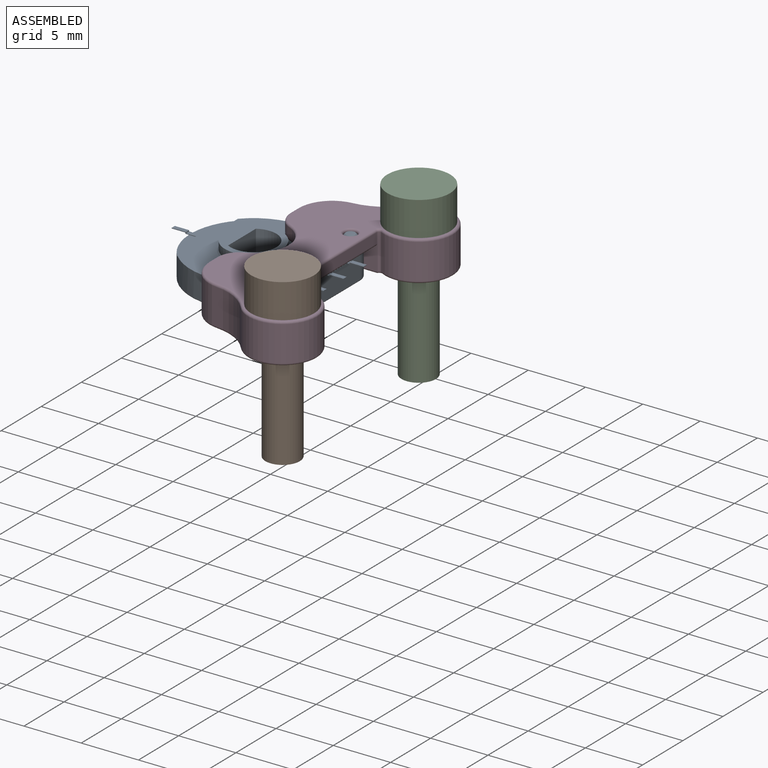
[diagram: assembled view]
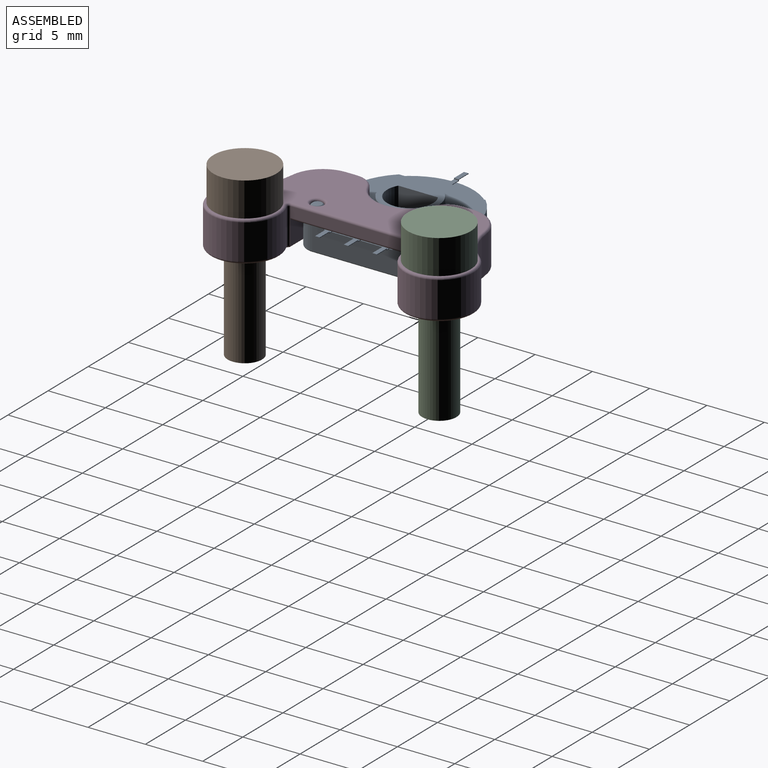
[diagram: assembled view, second angle]
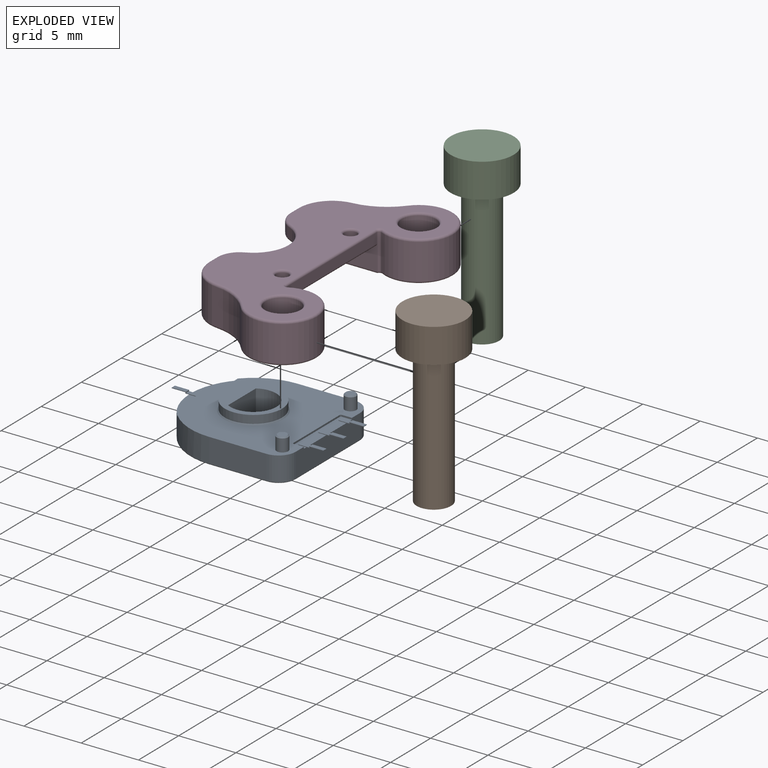
[diagram: exploded view]
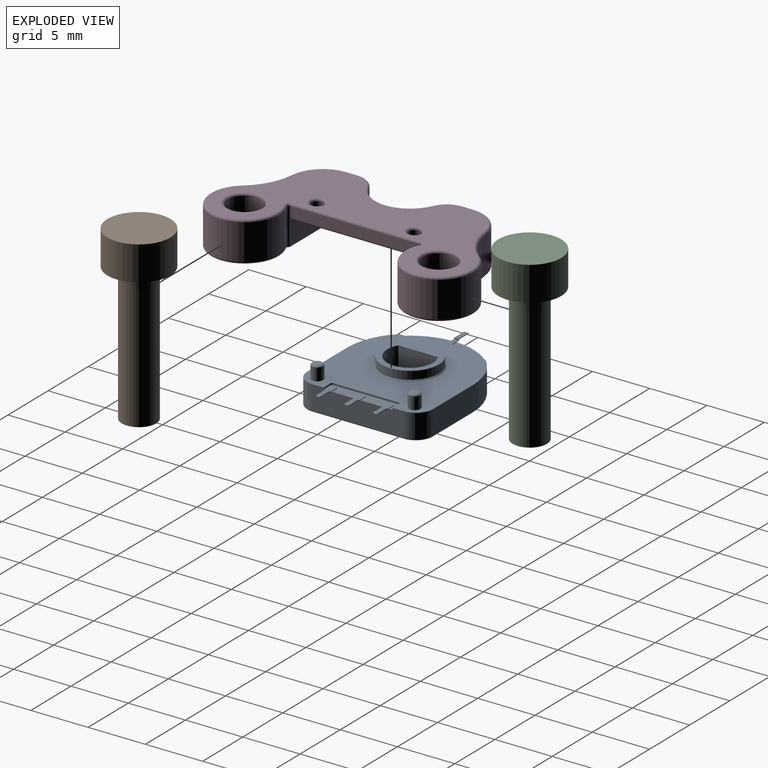
[diagram: exploded view, second angle]
ASSEMBLY  parts=4 mates=3
PART A: 143 faces, bbox 11.9x15x3.4 mm
  f0: plane 7.55x1.5mm, normal (0,0,-1), area 4.7mm2, adj f2,f28,f29,f30,f31,f32,f33,f34
  f1: plane 11.8x10.8mm, normal (0,0,1), area 91.4mm2, adj f9,f11,f12,f13,f14,f15,f16,f41
  f2: cylinder r=5.5mm len=11mm, axis (0,0,-1), area 35mm2, adj f0,f3,f4,f8,f15,f28,f34,f101
  f3: plane 11.25x11mm, normal (0,0,-1), area 84.3mm2, adj f2,f4,f5,f6,f7,f8,f21,f22
  f4: plane 5x2.1mm, normal (-1,0,0), area 10.5mm2, adj f2,f3,f5,f13
  f5: cylinder r=1.5mm len=2.1mm, axis (0,0,-1), area 4.9mm2, adj f3,f4,f6,f11
  f6: plane 8x2.1mm, normal (0,-1,0), area 15.9mm2, adj f3,f5,f7,f12,f35,f39,f40,f87
  f7: cylinder r=1.5mm len=2.1mm, axis (0,0,-1), area 4.9mm2, adj f3,f6,f8,f14
  f8: plane 5x2.1mm, normal (1,0,0), area 10.5mm2, adj f2,f3,f7,f16
  f9: cylinder r=2.25mm len=4.5mm, axis (0,0,1), area 1.4mm2, adj f1,f10
  f10: plane 4.5x4.5mm, normal (0,0,1), area 5.8mm2, adj f9,f19,f20
  f11: torus R=1.4mm, axis (0,0,1), area 0.4mm2, adj f1,f5,f12,f13
  f12: cylinder r=0.1mm len=8mm, axis (-1,0,0), area 1.3mm2, adj f1,f6,f11,f14
  f13: cylinder r=0.1mm len=5mm, axis (0,1,0), area 0.8mm2, adj f1,f4,f11,f15
  f14: torus R=1.4mm, axis (0,0,1), area 0.4mm2, adj f1,f7,f12,f16
  f15: torus R=5.4mm, axis (0,0,1), area 2.7mm2, adj f1,f2,f13,f16
  f16: cylinder r=0.1mm len=5mm, axis (0,-1,0), area 0.8mm2, adj f1,f8,f14,f15
  f17: cylinder r=2.5mm len=5mm, axis (0,0,1), area 11mm2, adj f18,f21
  f18: plane 5x5mm, normal (0,0,-1), area 9.5mm2, adj f17,f19,f20
  f19: cylinder r=2mm len=4mm, axis (0,0,1), area 24.3mm2, adj f10,f18,f20
  f20: plane 3.46x2.9mm, normal (0,-1,0), area 10mm2, adj f10,f18,f19
  f21: cone r=2.5mm half-angle=45deg, axis (0,0,1), area 2.3mm2, adj f3,f17
  f22: cylinder r=0.5mm len=1.1mm, axis (0,0,1), area 3.5mm2, adj f3,f27
  f23: plane 0.8x0.8mm, normal (0,0,-1), area 0.5mm2, adj f27
  f24: cylinder r=0.5mm len=1.1mm, axis (0,0,1), area 3.5mm2, adj f3,f26
  f25: plane 0.8x0.8mm, normal (0,0,-1), area 0.5mm2, adj f26
  f26: cone r=0.5mm half-angle=45deg, axis (0,0,1), area 0.4mm2, adj f24,f25
  f27: cone r=0.4mm half-angle=45deg, axis (0,0,1), area 0.4mm2, adj f22,f23
  f28: plane 1.09x0.15mm, normal (0,1,0), area 0.2mm2, adj f0,f2,f3,f29
  f29: cylinder r=0.1mm len=0.15mm, axis (0,0,-1), area 0mm2, adj f0,f3,f28,f30
  f30: cylinder r=4.8mm len=1.94mm, axis (0,0,-1), area 0.3mm2, adj f0,f3,f29,f31
  f31: plane 1.38x0.15mm, normal (0,1,0), area 0.2mm2, adj f0,f3,f30,f32
  f32: cylinder r=4.8mm len=1.94mm, axis (0,0,-1), area 0.3mm2, adj f0,f3,f31,f33
  f33: cylinder r=0.1mm len=0.15mm, axis (0,0,-1), area 0mm2, adj f0,f3,f32,f34
  f34: plane 1.09x0.15mm, normal (0,1,0), area 0.2mm2, adj f0,f2,f3,f33
  f35: plane 0.9x0.15mm, normal (1,0,0), area 0.1mm2, adj f3,f6,f36,f40
  f36: cylinder r=0.1mm len=0.15mm, axis (0,0,-1), area 0mm2, adj f3,f35,f37,f40
  f37: plane 5.8x0.15mm, normal (0,-1,0), area 0.9mm2, adj f3,f36,f38,f40
  f38: cylinder r=0.1mm len=0.15mm, axis (0,0,-1), area 0mm2, adj f3,f37,f39,f40
  f39: plane 0.9x0.15mm, normal (-1,0,0), area 0.1mm2, adj f3,f6,f38,f40
  f40: plane 6x1mm, normal (0,0,-1), area 5.2mm2, adj f6,f35,f36,f37,f38,f39,f88,f99
  f41: cylinder r=0.1mm len=0.2mm, axis (0,0,1), area 0mm2, adj f1,f42,f48,f49
  f42: plane 1.3x0.2mm, normal (0,1,0), area 0.3mm2, adj f1,f41,f43,f49
  f43: cylinder r=0.1mm len=0.2mm, axis (0,0,1), area 0mm2, adj f1,f42,f44,f49
  f44: plane 0.4x0.2mm, normal (-1,0,0), area 0.1mm2, adj f1,f43,f45,f49
  f45: cylinder r=0.1mm len=0.2mm, axis (0,0,1), area 0mm2, adj f1,f44,f46,f49
  f46: plane 1.3x0.2mm, normal (0,-1,0), area 0.3mm2, adj f1,f45,f47,f49
  f47: cylinder r=0.1mm len=0.2mm, axis (0,0,1), area 0mm2, adj f1,f46,f48,f49
  f48: plane 0.4x0.2mm, normal (1,0,0), area 0.1mm2, adj f1,f41,f47,f49
  f49: plane 1.5x0.6mm, normal (0,0,1), area 0.9mm2, adj f41,f42,f43,f44,f45,f46,f47,f48
  f50: cylinder r=0.3mm len=0.6mm, axis (0,0,1), area 0.2mm2, adj f1,f51,f53,f54
  f51: cylinder r=4.7mm len=1.53mm, axis (0,0,1), area 0.3mm2, adj f1,f50,f52,f54
  f52: cylinder r=0.3mm len=0.56mm, axis (0,0,1), area 0.2mm2, adj f1,f51,f53,f54
  f53: cylinder r=5.3mm len=1.73mm, axis (0,0,1), area 0.4mm2, adj f1,f50,f52,f54
  f54: plane 2.23x1.19mm, normal (0,0,1), area 1.3mm2, adj f50,f51,f52,f53
  f55: cylinder r=0.1mm len=0.2mm, axis (0,0,1), area 0mm2, adj f1,f56,f62,f63
  f56: plane 0.4x0.2mm, normal (0,1,0), area 0.1mm2, adj f1,f55,f57,f63
  f57: cylinder r=0.1mm len=0.2mm, axis (0,0,1), area 0mm2, adj f1,f56,f58,f63
  f58: plane 1.8x0.2mm, normal (-1,0,0), area 0.4mm2, adj f1,f57,f59,f63
  f59: cylinder r=0.1mm len=0.2mm, axis (0,0,1), area 0mm2, adj f1,f58,f60,f63
  f60: plane 0.4x0.2mm, normal (0,-1,0), area 0.1mm2, adj f1,f59,f61,f63
  f61: cylinder r=0.1mm len=0.2mm, axis (0,0,1), area 0mm2, adj f1,f60,f62,f63
  f62: plane 1.8x0.2mm, normal (1,0,0), area 0.4mm2, adj f1,f55,f61,f63
  f63: plane 2x0.6mm, normal (0,0,1), area 1.2mm2, adj f55,f56,f57,f58,f59,f60,f61,f62
  f64: cylinder r=0.1mm len=0.2mm, axis (0,0,1), area 0mm2, adj f1,f65,f71,f72
  f65: plane 1.3x0.2mm, normal (0,-1,0), area 0.3mm2, adj f1,f64,f66,f72
  f66: cylinder r=0.1mm len=0.2mm, axis (0,0,1), area 0mm2, adj f1,f65,f67,f72
  f67: plane 0.4x0.2mm, normal (1,0,0), area 0.1mm2, adj f1,f66,f68,f72
  f68: cylinder r=0.1mm len=0.2mm, axis (0,0,1), area 0mm2, adj f1,f67,f69,f72
  f69: plane 1.3x0.2mm, normal (0,1,0), area 0.3mm2, adj f1,f68,f70,f72
  f70: cylinder r=0.1mm len=0.2mm, axis (0,0,1), area 0mm2, adj f1,f69,f71,f72
  f71: plane 0.4x0.2mm, normal (-1,0,0), area 0.1mm2, adj f1,f64,f70,f72
  f72: plane 1.5x0.6mm, normal (0,0,1), area 0.9mm2, adj f64,f65,f66,f67,f68,f69,f70,f71
  f73: cylinder r=0.1mm len=0.2mm, axis (0,0,1), area 0mm2, adj f1,f74,f80,f81
  f74: plane 1.8x0.2mm, normal (1,0,0), area 0.4mm2, adj f1,f73,f75,f81
  f75: cylinder r=0.1mm len=0.2mm, axis (0,0,1), area 0mm2, adj f1,f74,f76,f81
  f76: plane 0.4x0.2mm, normal (0,1,0), area 0.1mm2, adj f1,f75,f77,f81
  f77: cylinder r=0.1mm len=0.2mm, axis (0,0,1), area 0mm2, adj f1,f76,f78,f81
  f78: plane 1.8x0.2mm, normal (-1,0,0), area 0.4mm2, adj f1,f77,f79,f81
  f79: cylinder r=0.1mm len=0.2mm, axis (0,0,1), area 0mm2, adj f1,f78,f80,f81
  f80: plane 0.4x0.2mm, normal (0,-1,0), area 0.1mm2, adj f1,f73,f79,f81
  f81: plane 2x0.6mm, normal (0,0,1), area 1.2mm2, adj f73,f74,f75,f76,f77,f78,f79,f80
  f82: cylinder r=0.3mm len=0.6mm, axis (0,0,1), area 0.2mm2, adj f1,f83,f85,f86
  f83: cylinder r=5.3mm len=1.73mm, axis (0,0,1), area 0.4mm2, adj f1,f82,f84,f86
  f84: cylinder r=0.3mm len=0.56mm, axis (0,0,1), area 0.2mm2, adj f1,f83,f85,f86
  f85: cylinder r=4.7mm len=1.53mm, axis (0,0,1), area 0.3mm2, adj f1,f82,f84,f86
  f86: plane 2.23x1.19mm, normal (0,0,1), area 1.3mm2, adj f82,f83,f84,f85
  f87: plane 0.4x0.28mm, normal (0,0,1), area 0.1mm2, adj f6,f89,f99,f100
  f88: plane 0.4x0.05mm, normal (0,1,0), area 0mm2, adj f40,f98,f99,f100
  f89: cylinder r=0.02mm len=0.4mm, axis (-1,0,0), area 0mm2, adj f87,f90,f99,f100
  f90: plane 0.4x0.06mm, normal (0,-1,0), area 0mm2, adj f89,f91,f99,f100
  f91: cylinder r=0.02mm len=0.4mm, axis (-1,0,0), area 0mm2, adj f90,f92,f99,f100
  f92: plane 1.18x0.4mm, normal (0,0,1), area 0.5mm2, adj f91,f93,f99,f100
  f93: plane 0.4x0.05mm, normal (0,-1,0), area 0mm2, adj f92,f94,f99,f100
  f94: plane 1.23x0.4mm, normal (0,0,-1), area 0.5mm2, adj f93,f95,f99,f100
  f95: cylinder r=0.02mm len=0.4mm, axis (-1,0,0), area 0mm2, adj f94,f96,f99,f100
  f96: plane 0.4x0.06mm, normal (0,1,0), area 0mm2, adj f95,f97,f99,f100
  f97: cylinder r=0.02mm len=0.4mm, axis (-1,0,0), area 0mm2, adj f96,f98,f99,f100
  f98: plane 0.93x0.4mm, normal (0,0,-1), area 0.4mm2, adj f88,f97,f99,f100
  f99: plane 2.2x0.15mm, normal (1,0,0), area 0.1mm2, adj f40,f87,f88,f89,f90,f91,f92,f93
  f100: plane 2.2x0.15mm, normal (-1,0,0), area 0.1mm2, adj f40,f87,f88,f89,f90,f91,f92,f93
  f101: plane 0.4x0.28mm, normal (0,0,1), area 0.1mm2, adj f2,f107,f113,f114
  f102: plane 1.23x0.4mm, normal (0,0,-1), area 0.5mm2, adj f103,f112,f113,f114
  f103: plane 0.4x0.05mm, normal (0,1,0), area 0mm2, adj f102,f104,f113,f114
  f104: plane 1.18x0.4mm, normal (0,0,1), area 0.5mm2, adj f103,f105,f113,f114
  f105: cylinder r=0.02mm len=0.4mm, axis (-1,0,0), area 0mm2, adj f104,f106,f113,f114
  f106: plane 0.4x0.06mm, normal (0,1,0), area 0mm2, adj f105,f107,f113,f114
  f107: cylinder r=0.02mm len=0.4mm, axis (-1,0,0), area 0mm2, adj f101,f106,f113,f114
  f108: plane 0.4x0.05mm, normal (0,-1,0), area 0mm2, adj f0,f109,f113,f114
  f109: plane 0.93x0.4mm, normal (0,0,-1), area 0.4mm2, adj f108,f110,f113,f114
  f110: cylinder r=0.02mm len=0.4mm, axis (-1,0,0), area 0mm2, adj f109,f111,f113,f114
  f111: plane 0.4x0.06mm, normal (0,-1,0), area 0mm2, adj f110,f112,f113,f114
  f112: cylinder r=0.02mm len=0.4mm, axis (-1,0,0), area 0mm2, adj f102,f111,f113,f114
  f113: plane 2.2x0.15mm, normal (1,0,0), area 0.1mm2, adj f0,f101,f102,f103,f104,f105,f106,f107
  f114: plane 2.2x0.15mm, normal (-1,0,0), area 0.1mm2, adj f0,f101,f102,f103,f104,f105,f106,f107
  f115: plane 0.4x0.28mm, normal (0,0,1), area 0.1mm2, adj f6,f117,f127,f128
  f116: plane 0.4x0.05mm, normal (0,1,0), area 0mm2, adj f40,f126,f127,f128
  f117: cylinder r=0.02mm len=0.4mm, axis (-1,0,0), area 0mm2, adj f115,f118,f127,f128
  f118: plane 0.4x0.06mm, normal (0,-1,0), area 0mm2, adj f117,f119,f127,f128
  f119: cylinder r=0.02mm len=0.4mm, axis (-1,0,0), area 0mm2, adj f118,f120,f127,f128
  f120: plane 1.18x0.4mm, normal (0,0,1), area 0.5mm2, adj f119,f121,f127,f128
  f121: plane 0.4x0.05mm, normal (0,-1,0), area 0mm2, adj f120,f122,f127,f128
  f122: plane 1.23x0.4mm, normal (0,0,-1), area 0.5mm2, adj f121,f123,f127,f128
  f123: cylinder r=0.02mm len=0.4mm, axis (-1,0,0), area 0mm2, adj f122,f124,f127,f128
  f124: plane 0.4x0.06mm, normal (0,1,0), area 0mm2, adj f123,f125,f127,f128
  f125: cylinder r=0.02mm len=0.4mm, axis (-1,0,0), area 0mm2, adj f124,f126,f127,f128
  f126: plane 0.93x0.4mm, normal (0,0,-1), area 0.4mm2, adj f116,f125,f127,f128
  f127: plane 2.2x0.15mm, normal (1,0,0), area 0.1mm2, adj f40,f115,f116,f117,f118,f119,f120,f121
  f128: plane 2.2x0.15mm, normal (-1,0,0), area 0.1mm2, adj f40,f115,f116,f117,f118,f119,f120,f121
  f129: plane 0.4x0.28mm, normal (0,0,1), area 0.1mm2, adj f6,f131,f141,f142
  f130: plane 0.4x0.05mm, normal (0,1,0), area 0mm2, adj f40,f140,f141,f142
  f131: cylinder r=0.02mm len=0.4mm, axis (-1,0,0), area 0mm2, adj f129,f132,f141,f142
  f132: plane 0.4x0.06mm, normal (0,-1,0), area 0mm2, adj f131,f133,f141,f142
  f133: cylinder r=0.02mm len=0.4mm, axis (-1,0,0), area 0mm2, adj f132,f134,f141,f142
  f134: plane 1.18x0.4mm, normal (0,0,1), area 0.5mm2, adj f133,f135,f141,f142
  f135: plane 0.4x0.05mm, normal (0,-1,0), area 0mm2, adj f134,f136,f141,f142
  f136: plane 1.23x0.4mm, normal (0,0,-1), area 0.5mm2, adj f135,f137,f141,f142
  f137: cylinder r=0.02mm len=0.4mm, axis (-1,0,0), area 0mm2, adj f136,f138,f141,f142
  f138: plane 0.4x0.06mm, normal (0,1,0), area 0mm2, adj f137,f139,f141,f142
  f139: cylinder r=0.02mm len=0.4mm, axis (-1,0,0), area 0mm2, adj f138,f140,f141,f142
  f140: plane 0.93x0.4mm, normal (0,0,-1), area 0.4mm2, adj f130,f139,f141,f142
  f141: plane 2.2x0.15mm, normal (1,0,0), area 0.1mm2, adj f40,f129,f130,f131,f132,f133,f134,f135
  f142: plane 2.2x0.15mm, normal (-1,0,0), area 0.1mm2, adj f40,f129,f130,f131,f132,f133,f134,f135
PART B: 5 faces, bbox 5.5x5.5x15 mm
  f0: cylinder r=2.75mm len=5.5mm, axis (0,0,-1), area 51.8mm2, adj f1,f2
  f1: plane 5.5x5.5mm, normal (0,0,1), area 16.7mm2, adj f0,f3
  f2: plane 5.5x5.5mm, normal (0,0,-1), area 23.8mm2, adj f0
  f3: cylinder r=1.5mm len=12mm, axis (0,0,-1), area 113.1mm2, adj f1,f4
  f4: plane 3x3mm, normal (0,0,1), area 7.1mm2, adj f3
PART C: same geometry as B
PART D: 70 faces, bbox 12x23.5x3.5 mm
  f0: plane 11.06x5.6mm, normal (0,0,-1), area 29.8mm2, adj f32,f34,f35,f37,f38,f63
  f1: plane 22.57x11.09mm, normal (0,0,1), area 116.1mm2, adj f49,f50,f51,f52,f53,f54,f55,f56
  f2: plane 0.94x0.9mm, normal (-1,0,0), area 0.8mm2, adj f21,f22,f43,f57
  f3: plane 11.4x6.41mm, normal (0,0,-1), area 54mm2, adj f4,f5,f30,f31,f33,f36,f39,f41
  f4: plane 6.59x2.21mm, normal (0,-1,0), area 13.2mm2, adj f3,f16,f27,f30,f47
  f5: plane 6.59x2.21mm, normal (0,1,0), area 13.2mm2, adj f3,f17,f38,f42,f45
  f6: plane 11.06x5.6mm, normal (0,0,-1), area 29.8mm2, adj f24,f25,f26,f27,f28,f65
  f7: cylinder r=3mm len=5.5mm, axis (0,0,1), area 6.3mm2, adj f22,f23,f39,f53
  f8: cylinder r=0.55mm len=1.1mm, axis (0,0,1), area 3.1mm2, adj f67,f69
  f9: cylinder r=0.55mm len=1.1mm, axis (0,0,1), area 3.1mm2, adj f48,f68
  f10: plane 0.94x0.9mm, normal (-1,0,0), area 0.8mm2, adj f20,f23,f33,f49
  f11: cylinder r=1.5mm len=3.1mm, axis (0,0,1), area 29.2mm2, adj f63,f64
  f12: cylinder r=1.5mm len=3.1mm, axis (0,0,1), area 29.2mm2, adj f65,f66
  f13: cylinder r=3mm len=6mm, axis (0,0,1), area 42mm2, adj f16,f18,f24,f54
  f14: cylinder r=3mm len=6mm, axis (0,0,1), area 42mm2, adj f17,f19,f32,f62
  f15: plane 11.3x0.9mm, normal (1,0,0), area 10.2mm2, adj f16,f17,f46,f58
  f16: cylinder r=0.2mm len=3.1mm, axis (0,0,1), area 1.2mm2, adj f4,f13,f15,f25,f47,f56
  f17: cylinder r=0.2mm len=3.1mm, axis (0,0,1), area 1.2mm2, adj f5,f14,f15,f35,f45,f60
  f18: cylinder r=5mm len=3.43mm, axis (0,0,1), area 12.4mm2, adj f13,f20,f26,f52
  f19: cylinder r=5mm len=3.43mm, axis (0,0,1), area 12.4mm2, adj f14,f21,f34,f61
  f20: cylinder r=3mm len=3.1mm, axis (0,0,1), area 12.8mm2, adj f10,f18,f28,f30,f31,f50
  f21: cylinder r=3mm len=3.1mm, axis (0,0,1), area 12.8mm2, adj f2,f19,f37,f42,f44,f59
  f22: cylinder r=2mm len=1.83mm, axis (0,0,1), area 2.1mm2, adj f2,f7,f41,f55
  f23: cylinder r=2mm len=1.83mm, axis (0,0,1), area 2.1mm2, adj f7,f10,f36,f51
  f24: torus R=2.8mm, axis (0,0,1), area 4.2mm2, adj f6,f13,f25,f26
  f25: torus R=0.4mm, axis (0,0,1), area 0.1mm2, adj f6,f16,f24,f27
  f26: torus R=5.2mm, axis (0,0,1), area 1.3mm2, adj f6,f18,f24,f28
  f27: cylinder r=0.2mm len=6.59mm, axis (1,0,0), area 2.1mm2, adj f4,f6,f25,f29
  f28: torus R=2.8mm, axis (0,0,1), area 1.2mm2, adj f6,f20,f26,f29
  f29: sphere r=0.2mm, area 0.1mm2, adj f27,f28,f30
  f30: cylinder r=0.2mm len=2.2mm, axis (0,0,1), area 0.7mm2, adj f3,f4,f20,f29,f31
  f31: torus R=2.8mm, axis (0,0,-1), area 0.1mm2, adj f3,f20,f30,f33
  f32: torus R=2.8mm, axis (0,0,1), area 4.2mm2, adj f0,f14,f34,f35
  f33: cylinder r=0.2mm len=0.94mm, axis (0,-1,0), area 0.3mm2, adj f3,f10,f31,f36
  f34: torus R=5.2mm, axis (0,0,1), area 1.3mm2, adj f0,f19,f32,f37
  f35: torus R=0.4mm, axis (0,0,1), area 0.1mm2, adj f0,f17,f32,f38
  f36: torus R=1.8mm, axis (0,0,-1), area 0.7mm2, adj f3,f23,f33,f39
  f37: torus R=2.8mm, axis (0,0,1), area 1.2mm2, adj f0,f21,f34,f40
  f38: cylinder r=0.2mm len=6.59mm, axis (-1,0,0), area 2.1mm2, adj f0,f5,f35,f40
  f39: torus R=3.2mm, axis (0,0,-1), area 2.2mm2, adj f3,f7,f36,f41
  f40: sphere r=0.2mm, area 0.1mm2, adj f37,f38,f42
  f41: torus R=1.8mm, axis (0,0,-1), area 0.7mm2, adj f3,f22,f39,f43
  f42: cylinder r=0.2mm len=2.2mm, axis (0,0,1), area 0.7mm2, adj f3,f5,f21,f40,f44
  f43: cylinder r=0.2mm len=0.94mm, axis (0,-1,0), area 0.3mm2, adj f2,f3,f41,f44
  f44: torus R=2.8mm, axis (0,0,-1), area 0.1mm2, adj f3,f21,f42,f43
  f45: torus R=0.4mm, axis (0,0,-1), area 0mm2, adj f3,f5,f17,f46
  f46: cylinder r=0.2mm len=11.3mm, axis (0,-1,0), area 3.5mm2, adj f3,f15,f45,f47
  f47: torus R=0.4mm, axis (0,0,-1), area 0mm2, adj f3,f4,f16,f46
  f48: torus R=0.75mm, axis (0,0,-1), area 1.2mm2, adj f3,f9
  f49: cylinder r=0.2mm len=0.94mm, axis (0,1,0), area 0.3mm2, adj f1,f10,f50,f51
  f50: torus R=2.8mm, axis (0,0,1), area 1.4mm2, adj f1,f20,f49,f52
  f51: torus R=1.8mm, axis (0,0,1), area 0.7mm2, adj f1,f23,f49,f53
  f52: torus R=5.2mm, axis (0,0,1), area 1.3mm2, adj f1,f18,f50,f54
  f53: torus R=3.2mm, axis (0,0,1), area 2.2mm2, adj f1,f7,f51,f55
  f54: torus R=2.8mm, axis (0,0,1), area 4.2mm2, adj f1,f13,f52,f56
  f55: torus R=1.8mm, axis (0,0,1), area 0.7mm2, adj f1,f22,f53,f57
  f56: torus R=0.4mm, axis (0,0,1), area 0.2mm2, adj f1,f16,f54,f58
  f57: cylinder r=0.2mm len=0.94mm, axis (0,1,0), area 0.3mm2, adj f1,f2,f55,f59
  f58: cylinder r=0.2mm len=11.3mm, axis (0,1,0), area 3.5mm2, adj f1,f15,f56,f60
  f59: torus R=2.8mm, axis (0,0,1), area 1.4mm2, adj f1,f21,f57,f61
  f60: torus R=0.4mm, axis (0,0,1), area 0.2mm2, adj f1,f17,f58,f62
  f61: torus R=5.2mm, axis (0,0,1), area 1.3mm2, adj f1,f19,f59,f62
  f62: torus R=2.8mm, axis (0,0,1), area 4.2mm2, adj f1,f14,f60,f61
  f63: torus R=1.7mm, axis (0,0,1), area 3.1mm2, adj f0,f11
  f64: torus R=1.7mm, axis (0,0,1), area 3.1mm2, adj f1,f11
  f65: torus R=1.7mm, axis (0,0,1), area 3.1mm2, adj f6,f12
  f66: torus R=1.7mm, axis (0,0,1), area 3.1mm2, adj f1,f12
  f67: torus R=0.75mm, axis (0,0,1), area 1.2mm2, adj f1,f8
  f68: torus R=0.75mm, axis (0,0,1), area 1.2mm2, adj f1,f9
  f69: torus R=0.75mm, axis (0,0,-1), area 1.2mm2, adj f3,f8
PLACE A rot(axis=(0.71,-0.71,0),180deg) t=(-8.05,-2.03,2.29)mm
PLACE B rot(axis=(1,0,0),180deg) t=(0.43,-10.52,6.59)mm
PLACE C rot(axis=(1,0,0),180deg) t=(0.43,6.45,6.59)mm
PLACE D t=(-2.05,-2.03,0.09)mm
MATE fastened A.f22 <-> D.f8  axis (0,0,1) through (-2.55,-6.28,2.29)mm
MATE revolute C.f3 <-> D.f12  axis (0,0,1) through (0.43,6.45,3.59)mm
MATE revolute B.f3 <-> D.f11  axis (0,0,1) through (0.43,-10.52,3.59)mm
